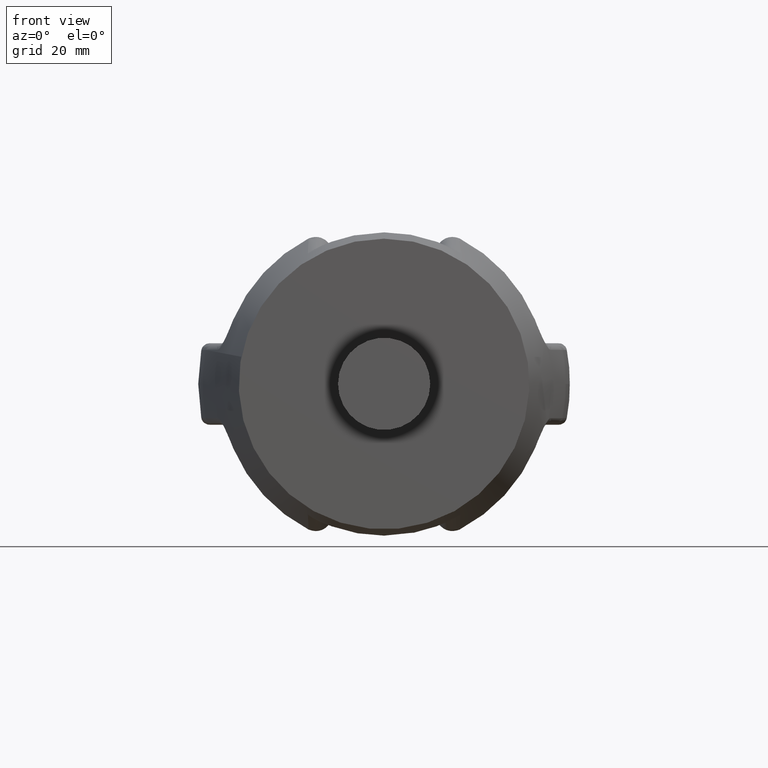
[diagram: clean part render]
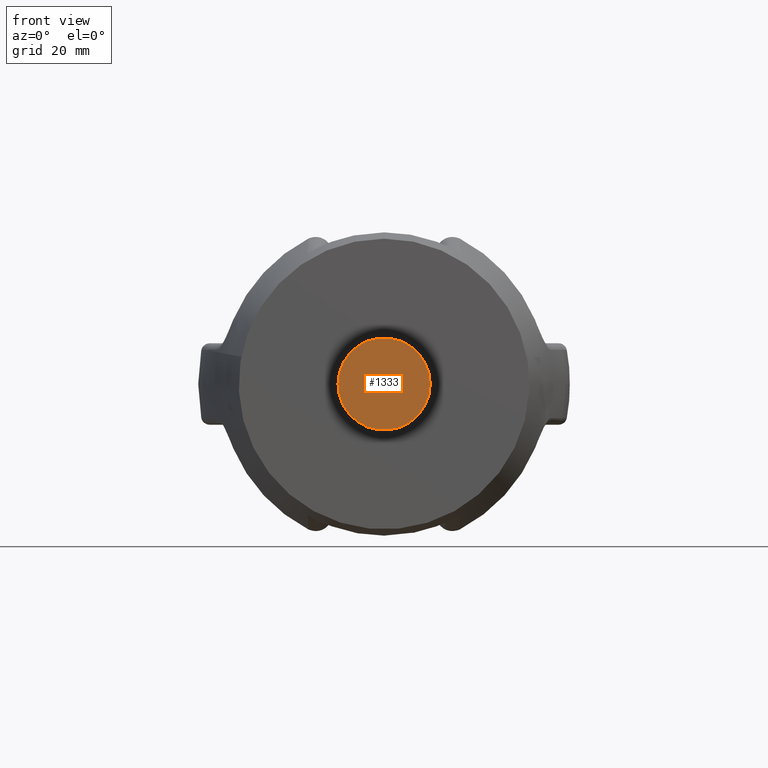
[diagram: same view with one face highlighted and labeled with its STEP entity id]
A machine part, front view. The second image highlights one B-rep face of the part: STEP entity #1333.
In plain terms, the highlighted planar face has unit normal (0, 1, 0).
Its self-contained STEP definition (entity closure, byte-faithful):
#1109=FACE_OUTER_BOUND('',#1849,.T.);
#1333=ADVANCED_FACE('',(#1109),#1567,.F.);
#1567=PLANE('',#5173);
#1691=CIRCLE('',#5171,7.935);
#1849=EDGE_LOOP('',(#2901));
#2901=ORIENTED_EDGE('',*,*,#4427,.F.);
#4019=VERTEX_POINT('',#6924);
#4427=EDGE_CURVE('',#4019,#4019,#1691,.T.);
#5171=AXIS2_PLACEMENT_3D('',#6923,#5577,#5578);
#5173=AXIS2_PLACEMENT_3D('',#6926,#5581,#5582);
#5577=DIRECTION('',(0.,1.,0.));
#5578=DIRECTION('',(1.,0.,6.12323399573677E-17));
#5581=DIRECTION('',(0.,1.,0.));
#5582=DIRECTION('',(0.,0.,1.));
#6923=CARTESIAN_POINT('',(0.,-25.,0.));
#6924=CARTESIAN_POINT('',(7.935,-25.,4.85878617561712E-16));
#6926=CARTESIAN_POINT('',(0.,-25.,0.));